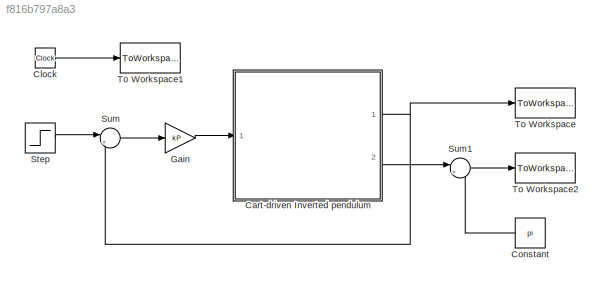
MODEL slx_f816b797a8a3
KIND model
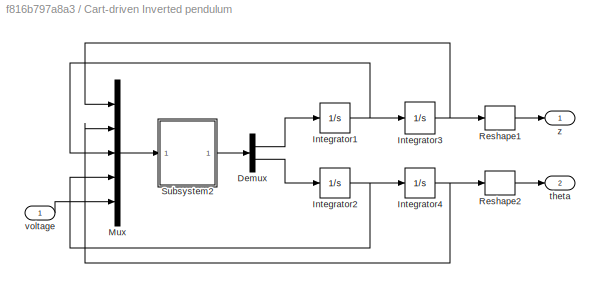
BLOCK [SubSystem] Cart-driven Inverted pendulum
  FunctionWithSeparateData = off
  MaskHideContents = off
  MinAlgLoopOccurrences = off
  Opaque = off
  Ports = [1, 2]
  PropExecContextOutsideSubsystem = off
  RTWSystemCode = Auto
  RequestExecContextInheritance = off
BLOCK [Demux] Cart-driven Inverted pendulum/Demux
  DisplayOption = bar
  Outputs = 2
  Ports = [1, 2]
BLOCK [Integrator] Cart-driven Inverted pendulum/Integrator1
  InitialCondition = dz_0
  Ports = [1, 1]
BLOCK [Integrator] Cart-driven Inverted pendulum/Integrator2
  InitialCondition = dtheta_0
  Ports = [1, 1]
BLOCK [Integrator] Cart-driven Inverted pendulum/Integrator3
  InitialCondition = z_0
  Ports = [1, 1]
BLOCK [Integrator] Cart-driven Inverted pendulum/Integrator4
  InitialCondition = theta_0
  Ports = [1, 1]
BLOCK [Mux] Cart-driven Inverted pendulum/Mux
  DisplayOption = bar
  Inputs = 5
  Ports = [5, 1]
BLOCK [Reshape] Cart-driven Inverted pendulum/Reshape1
  Ports = [1, 1]
BLOCK [Reshape] Cart-driven Inverted pendulum/Reshape2
  Ports = [1, 1]
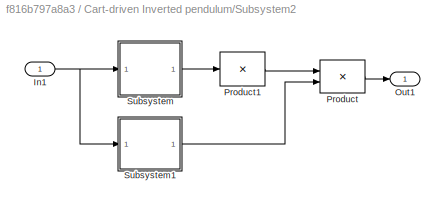
BLOCK [SubSystem] Cart-driven Inverted pendulum/Subsystem2
  FunctionWithSeparateData = off
  MaskHideContents = off
  MinAlgLoopOccurrences = off
  Opaque = off
  Ports = [1, 1]
  PropExecContextOutsideSubsystem = off
  RTWSystemCode = Auto
  RequestExecContextInheritance = off
BLOCK [Inport] Cart-driven Inverted pendulum/Subsystem2/In1
  IconDisplay = Port number
BLOCK [Outport] Cart-driven Inverted pendulum/Subsystem2/Out1
  IconDisplay = Port number
BLOCK [Product] Cart-driven Inverted pendulum/Subsystem2/Product
  Multiplication = Matrix(*)
  Ports = [2, 1]
  RndMeth = Floor
BLOCK [Product] Cart-driven Inverted pendulum/Subsystem2/Product1
  Inputs = /
  Multiplication = Matrix(*)
  Ports = [1, 1]
  RndMeth = Floor
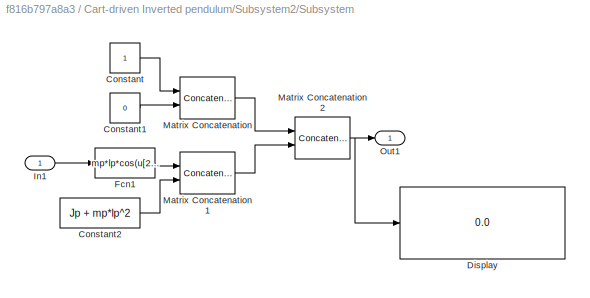
BLOCK [SubSystem] Cart-driven Inverted pendulum/Subsystem2/Subsystem
  FunctionWithSeparateData = off
  MaskHideContents = off
  MinAlgLoopOccurrences = off
  Opaque = off
  Ports = [1, 1]
  PropExecContextOutsideSubsystem = off
  RTWSystemCode = Auto
  RequestExecContextInheritance = off
BLOCK [Constant] Cart-driven Inverted pendulum/Subsystem2/Subsystem/Constant
BLOCK [Constant] Cart-driven Inverted pendulum/Subsystem2/Subsystem/Constant1
  Value = 0
BLOCK [Constant] Cart-driven Inverted pendulum/Subsystem2/Subsystem/Constant2
  Value = Jp + mp*lp^2
BLOCK [Display] Cart-driven Inverted pendulum/Subsystem2/Subsystem/Display
  Decimation = 1
  Lockdown = off
  Ports = [1]
BLOCK [Fcn] Cart-driven Inverted pendulum/Subsystem2/Subsystem/Fcn1
  Expr = mp*lp*cos(u[2])
BLOCK [Inport] Cart-driven Inverted pendulum/Subsystem2/Subsystem/In1
  IconDisplay = Port number
BLOCK [Concatenate] Cart-driven Inverted pendulum/Subsystem2/Subsystem/Matrix Concatenation
  ConcatenateDimension = 2
  Mode = Multidimensional array
  Ports = [2, 1]
BLOCK [Concatenate] Cart-driven Inverted pendulum/Subsystem2/Subsystem/Matrix Concatenation1
  ConcatenateDimension = 2
  Mode = Multidimensional array
  Ports = [2, 1]
BLOCK [Concatenate] Cart-driven Inverted pendulum/Subsystem2/Subsystem/Matrix Concatenation2
  Mode = Multidimensional array
  Ports = [2, 1]
BLOCK [Outport] Cart-driven Inverted pendulum/Subsystem2/Subsystem/Out1
  IconDisplay = Port number
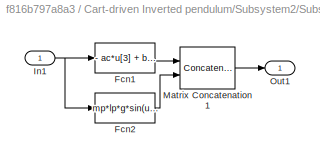
BLOCK [SubSystem] Cart-driven Inverted pendulum/Subsystem2/Subsystem1
  FunctionWithSeparateData = off
  MaskHideContents = off
  MinAlgLoopOccurrences = off
  Opaque = off
  Ports = [1, 1]
  PropExecContextOutsideSubsystem = off
  RTWSystemCode = Auto
  RequestExecContextInheritance = off
BLOCK [Fcn] Cart-driven Inverted pendulum/Subsystem2/Subsystem1/Fcn1
  Expr = - ac*u[3] + bc*u[5]
BLOCK [Fcn] Cart-driven Inverted pendulum/Subsystem2/Subsystem1/Fcn2
  Expr = mp*lp*g*sin(u[2]) - mup*u[4]
BLOCK [Inport] Cart-driven Inverted pendulum/Subsystem2/Subsystem1/In1
  IconDisplay = Port number
BLOCK [Concatenate] Cart-driven Inverted pendulum/Subsystem2/Subsystem1/Matrix Concatenation1
  Mode = Multidimensional array
  Ports = [2, 1]
BLOCK [Outport] Cart-driven Inverted pendulum/Subsystem2/Subsystem1/Out1
  IconDisplay = Port number
BLOCK [Outport] Cart-driven Inverted pendulum/theta
  IconDisplay = Port number
  Port = 2
BLOCK [Inport] Cart-driven Inverted pendulum/voltage
  IconDisplay = Port number
BLOCK [Outport] Cart-driven Inverted pendulum/z
  IconDisplay = Port number
BLOCK [Clock] Clock
BLOCK [Constant] Constant
  Value = pi
BLOCK [Gain] Gain
  Gain = kP
BLOCK [Step] Step
  After = 0.2
  SampleTime = 0
  Time = 0
BLOCK [Sum] Sum
  IconShape = round
  Inputs = |+-
  Ports = [2, 1]
BLOCK [Sum] Sum1
  IconShape = round
  Inputs = |+-
  Ports = [2, 1]
BLOCK [ToWorkspace] To Workspace
  MaxDataPoints = inf
  Ports = [1]
  SampleTime = -1
  VariableName = z_sim
BLOCK [ToWorkspace] To Workspace1
  MaxDataPoints = inf
  Ports = [1]
  SampleTime = -1
  VariableName = t_sim
BLOCK [ToWorkspace] To Workspace2
  MaxDataPoints = inf
  Ports = [1]
  SampleTime = -1
  VariableName = phi_sim
LINE Cart-driven Inverted pendulum/Demux:1 -> Cart-driven Inverted pendulum/Integrator1:1
LINE Cart-driven Inverted pendulum/Demux:2 -> Cart-driven Inverted pendulum/Integrator2:1
NET Cart-driven Inverted pendulum/Integrator1:1 -> Cart-driven Inverted pendulum/Integrator3:1, Cart-driven Inverted pendulum/Mux:3
NET Cart-driven Inverted pendulum/Integrator2:1 -> Cart-driven Inverted pendulum/Integrator4:1, Cart-driven Inverted pendulum/Mux:4
NET Cart-driven Inverted pendulum/Integrator3:1 -> Cart-driven Inverted pendulum/Mux:1, Cart-driven Inverted pendulum/Reshape1:1
NET Cart-driven Inverted pendulum/Integrator4:1 -> Cart-driven Inverted pendulum/Mux:2, Cart-driven Inverted pendulum/Reshape2:1
LINE Cart-driven Inverted pendulum/Mux:1 -> Cart-driven Inverted pendulum/Subsystem2:1
LINE Cart-driven Inverted pendulum/Reshape1:1 -> Cart-driven Inverted pendulum/z:1
LINE Cart-driven Inverted pendulum/Reshape2:1 -> Cart-driven Inverted pendulum/theta:1
NET Cart-driven Inverted pendulum/Subsystem2/In1:1 -> Cart-driven Inverted pendulum/Subsystem2/Subsystem1:1, Cart-driven Inverted pendulum/Subsystem2/Subsystem:1
LINE Cart-driven Inverted pendulum/Subsystem2/Product1:1 -> Cart-driven Inverted pendulum/Subsystem2/Product:1
LINE Cart-driven Inverted pendulum/Subsystem2/Product:1 -> Cart-driven Inverted pendulum/Subsystem2/Out1:1
LINE Cart-driven Inverted pendulum/Subsystem2/Subsystem/Constant1:1 -> Cart-driven Inverted pendulum/Subsystem2/Subsystem/Matrix Concatenation:2
LINE Cart-driven Inverted pendulum/Subsystem2/Subsystem/Constant2:1 -> Cart-driven Inverted pendulum/Subsystem2/Subsystem/Matrix Concatenation1:2
LINE Cart-driven Inverted pendulum/Subsystem2/Subsystem/Constant:1 -> Cart-driven Inverted pendulum/Subsystem2/Subsystem/Matrix Concatenation:1
LINE Cart-driven Inverted pendulum/Subsystem2/Subsystem/Fcn1:1 -> Cart-driven Inverted pendulum/Subsystem2/Subsystem/Matrix Concatenation1:1
LINE Cart-driven Inverted pendulum/Subsystem2/Subsystem/In1:1 -> Cart-driven Inverted pendulum/Subsystem2/Subsystem/Fcn1:1
LINE Cart-driven Inverted pendulum/Subsystem2/Subsystem/Matrix Concatenation1:1 -> Cart-driven Inverted pendulum/Subsystem2/Subsystem/Matrix Concatenation2:2
NET Cart-driven Inverted pendulum/Subsystem2/Subsystem/Matrix Concatenation2:1 -> Cart-driven Inverted pendulum/Subsystem2/Subsystem/Display:1, Cart-driven Inverted pendulum/Subsystem2/Subsystem/Out1:1
LINE Cart-driven Inverted pendulum/Subsystem2/Subsystem/Matrix Concatenation:1 -> Cart-driven Inverted pendulum/Subsystem2/Subsystem/Matrix Concatenation2:1
LINE Cart-driven Inverted pendulum/Subsystem2/Subsystem1/Fcn1:1 -> Cart-driven Inverted pendulum/Subsystem2/Subsystem1/Matrix Concatenation1:1
LINE Cart-driven Inverted pendulum/Subsystem2/Subsystem1/Fcn2:1 -> Cart-driven Inverted pendulum/Subsystem2/Subsystem1/Matrix Concatenation1:2
NET Cart-driven Inverted pendulum/Subsystem2/Subsystem1/In1:1 -> Cart-driven Inverted pendulum/Subsystem2/Subsystem1/Fcn1:1, Cart-driven Inverted pendulum/Subsystem2/Subsystem1/Fcn2:1
LINE Cart-driven Inverted pendulum/Subsystem2/Subsystem1/Matrix Concatenation1:1 -> Cart-driven Inverted pendulum/Subsystem2/Subsystem1/Out1:1
LINE Cart-driven Inverted pendulum/Subsystem2/Subsystem1:1 -> Cart-driven Inverted pendulum/Subsystem2/Product:2
LINE Cart-driven Inverted pendulum/Subsystem2/Subsystem:1 -> Cart-driven Inverted pendulum/Subsystem2/Product1:1
LINE Cart-driven Inverted pendulum/Subsystem2:1 -> Cart-driven Inverted pendulum/Demux:1
LINE Cart-driven Inverted pendulum/voltage:1 -> Cart-driven Inverted pendulum/Mux:5
NET Cart-driven Inverted pendulum:1 -> Sum:2, To Workspace:1
LINE Cart-driven Inverted pendulum:2 -> Sum1:1
LINE Clock:1 -> To Workspace1:1
LINE Constant:1 -> Sum1:2
LINE Gain:1 -> Cart-driven Inverted pendulum:1
LINE Step:1 -> Sum:1
LINE Sum1:1 -> To Workspace2:1
LINE Sum:1 -> Gain:1
note: NET lines group one-source signal fan-out (src -> all destinations, sorted); 1:1 wires keep LINE
